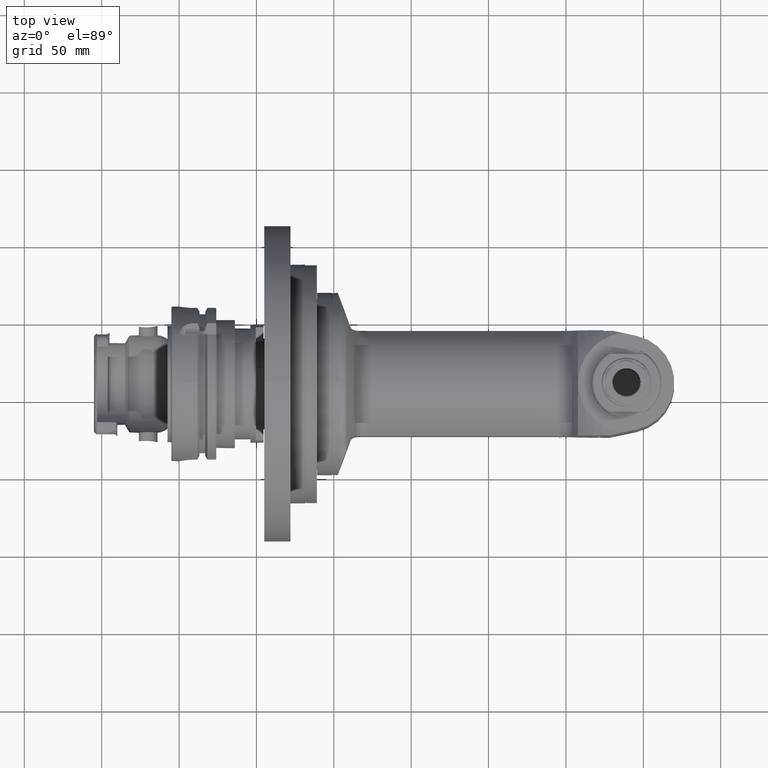
[diagram: clean part render]
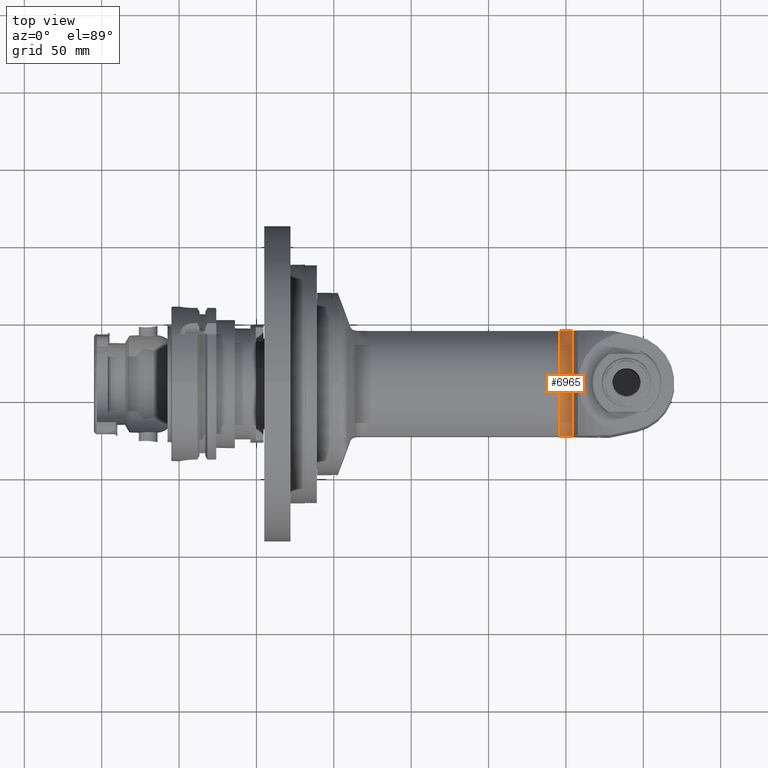
[diagram: same view with one face highlighted and labeled with its STEP entity id]
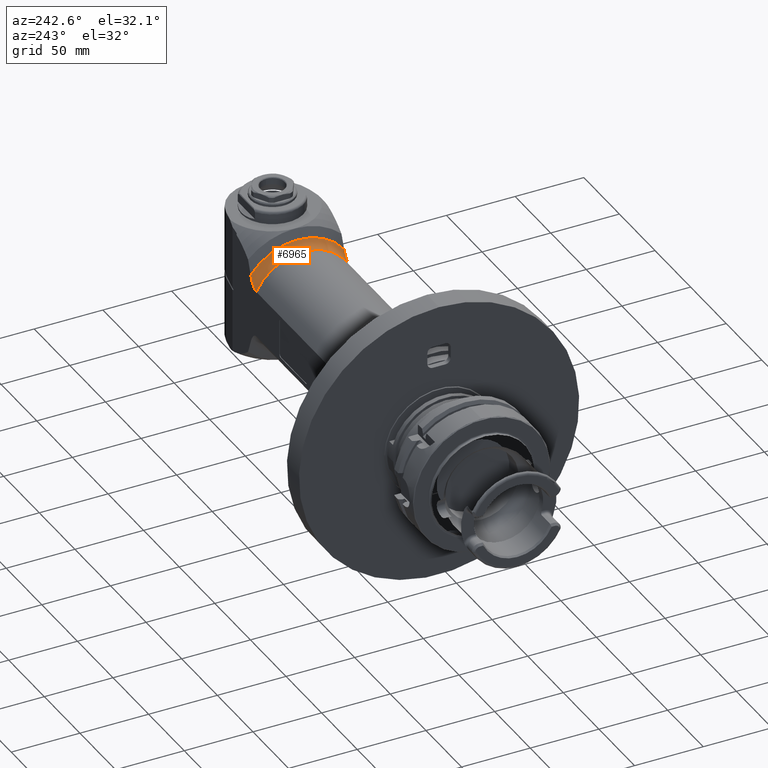
[diagram: same view with one face highlighted and labeled with its STEP entity id]
A machine part, top view. The second image highlights one B-rep face of the part: STEP entity #6965.
A second angle (auxiliary view) of the same face is appended — the face is thin or edge-on in the first view.
In plain terms, the highlighted toroidal blend (fillet) surface has major radius 47 mm and minor (blend) radius 9 mm.
Its self-contained STEP definition (entity closure, byte-faithful):
#68=TOROIDAL_SURFACE('',#7687,47.,9.);
#1628=FACE_OUTER_BOUND('',#2077,.T.);
#2077=EDGE_LOOP('',(#5717,#5718,#5719,#5720));
#2421=B_SPLINE_CURVE_WITH_KNOTS('',3,(#12035,#12036,#12037,#12038,#12039,
#12040,#12041,#12042,#12043,#12044,#12045,#12046,#12047,#12048),
 .UNSPECIFIED.,.F.,.F.,(4,2,2,2,2,2,4),(-4.53537769620374,-4.35740182880211,
-4.07702596918389,-3.86658457862338,-3.65614318806286,-3.51214519276011,
-3.38938345646085),.UNSPECIFIED.);
#2423=B_SPLINE_CURVE_WITH_KNOTS('',3,(#12152,#12153,#12154,#12155,#12156,
#12157,#12158,#12159,#12160,#12161,#12162,#12163,#12164,#12165),
 .UNSPECIFIED.,.F.,.F.,(4,2,2,2,2,2,4),(-3.38938345646085,-3.26662172016158,
-3.12262372485883,-2.91218233429832,-2.7017409437378,-2.42136508411959,
-2.24338921671169),.UNSPECIFIED.);
#2661=CIRCLE('',#7686,38.);
#2662=CIRCLE('',#7688,42.5);
#3170=VERTEX_POINT('',#12032);
#3171=VERTEX_POINT('',#12034);
#3197=VERTEX_POINT('',#12147);
#3198=VERTEX_POINT('',#12151);
#4019=EDGE_CURVE('',#3171,#3170,#2421,.T.);
#4049=EDGE_CURVE('',#3198,#3197,#2423,.T.);
#4132=EDGE_CURVE('',#3170,#3198,#2661,.T.);
#4133=EDGE_CURVE('',#3197,#3171,#2662,.T.);
#5717=ORIENTED_EDGE('',*,*,#4133,.T.);
#5718=ORIENTED_EDGE('',*,*,#4019,.T.);
#5719=ORIENTED_EDGE('',*,*,#4132,.T.);
#5720=ORIENTED_EDGE('',*,*,#4049,.T.);
#6965=ADVANCED_FACE('',(#1628),#68,.F.);
#7686=AXIS2_PLACEMENT_3D('',#12507,#9193,#9194);
#7687=AXIS2_PLACEMENT_3D('',#12508,#9195,#9196);
#7688=AXIS2_PLACEMENT_3D('',#12509,#9197,#9198);
#9193=DIRECTION('center_axis',(1.,0.,0.));
#9194=DIRECTION('ref_axis',(0.,-1.,0.));
#9195=DIRECTION('center_axis',(1.,0.,0.));
#9196=DIRECTION('ref_axis',(0.,0.,-1.));
#9197=DIRECTION('center_axis',(-1.,0.,0.));
#9198=DIRECTION('ref_axis',(0.,-0.599999999998912,-0.800000000000816));
#12032=CARTESIAN_POINT('',(162.6491470389,-16.97056274848,34.));
#12034=CARTESIAN_POINT('',(170.443375673,-25.5,34.));
#12035=CARTESIAN_POINT('Ctrl Pts',(170.443375672964,-25.5000000000124,34.));
#12036=CARTESIAN_POINT('Ctrl Pts',(170.238066143501,-24.9073224394958,34.));
#12037=CARTESIAN_POINT('Ctrl Pts',(169.999966857014,-24.3019762332053,34.));
#12038=CARTESIAN_POINT('Ctrl Pts',(169.316124421984,-22.775617262053,34.));
#12039=CARTESIAN_POINT('Ctrl Pts',(168.827756415105,-21.8740827520354,34.));
#12040=CARTESIAN_POINT('Ctrl Pts',(167.936205079956,-20.5022881748303,34.));
#12041=CARTESIAN_POINT('Ctrl Pts',(167.478894813742,-19.8818483557007,34.));
#12042=CARTESIAN_POINT('Ctrl Pts',(166.455028943999,-18.7484497607113,34.));
#12043=CARTESIAN_POINT('Ctrl Pts',(165.887313072228,-18.236539663176,34.));
#12044=CARTESIAN_POINT('Ctrl Pts',(164.903018327277,-17.5830700752859,34.));
#12045=CARTESIAN_POINT('Ctrl Pts',(164.389780761955,-17.3216241650835,34.));
#12046=CARTESIAN_POINT('Ctrl Pts',(163.542770080769,-17.0509805712282,34.));
#12047=CARTESIAN_POINT('Ctrl Pts',(163.058352826564,-16.9705627484771,34.));
#12048=CARTESIAN_POINT('Ctrl Pts',(162.6491470389,-16.9705627484771,34.));
#12147=CARTESIAN_POINT('',(170.443375673,-25.50000000007,-34.00000000001));
#12151=CARTESIAN_POINT('',(162.6491470389,-16.97056274848,-34.));
#12152=CARTESIAN_POINT('Ctrl Pts',(162.6491470389,-16.9705627484771,-34.));
#12153=CARTESIAN_POINT('Ctrl Pts',(163.058352826564,-16.9705627484771,-34.));
#12154=CARTESIAN_POINT('Ctrl Pts',(163.542770080769,-17.0509805712282,-34.));
#12155=CARTESIAN_POINT('Ctrl Pts',(164.389780761955,-17.3216241650835,-34.));
#12156=CARTESIAN_POINT('Ctrl Pts',(164.903018327277,-17.5830700752859,-34.));
#12157=CARTESIAN_POINT('Ctrl Pts',(165.887313072228,-18.236539663176,-34.));
#12158=CARTESIAN_POINT('Ctrl Pts',(166.455028943999,-18.7484497607113,-34.));
#12159=CARTESIAN_POINT('Ctrl Pts',(167.478894813742,-19.8818483557008,-34.));
#12160=CARTESIAN_POINT('Ctrl Pts',(167.936205079956,-20.5022881748303,-34.));
#12161=CARTESIAN_POINT('Ctrl Pts',(168.827756415105,-21.8740827520354,-34.));
#12162=CARTESIAN_POINT('Ctrl Pts',(169.316124421984,-22.775617262053,-34.));
#12163=CARTESIAN_POINT('Ctrl Pts',(169.999966857023,-24.3019762332261,-34.));
#12164=CARTESIAN_POINT('Ctrl Pts',(170.238066143517,-24.9073224395383,-34.));
#12165=CARTESIAN_POINT('Ctrl Pts',(170.443375672986,-25.5000000000749,-34.));
#12507=CARTESIAN_POINT('Origin',(162.6491470389,0.,0.));
#12508=CARTESIAN_POINT('Origin',(162.6491470389,0.,0.));
#12509=CARTESIAN_POINT('Origin',(170.443375673,0.,0.));